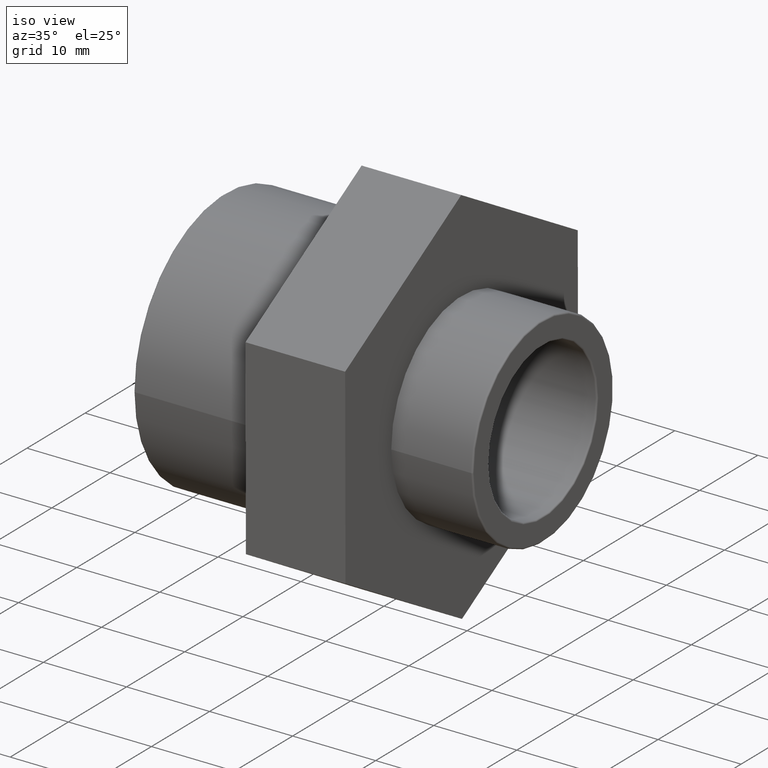
[diagram: clean part render]
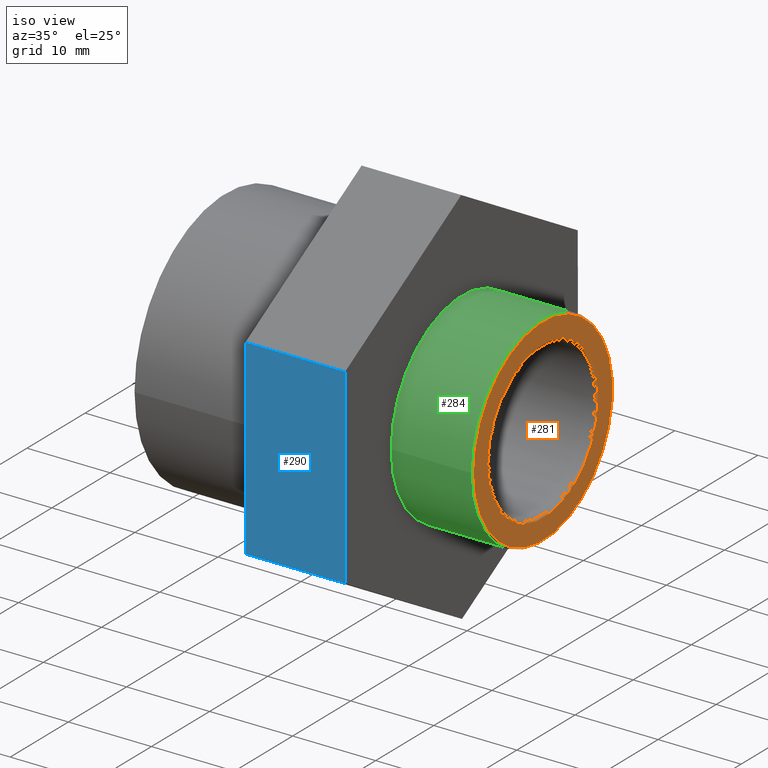
[diagram: same view with three faces highlighted in distinct colors, each labeled with its STEP entity id]
A machine part, iso view with three faces highlighted in distinct colors.
Their STEP definitions:

[orange] entity #281 — the highlighted planar face has unit normal (1, 0, 0).
#56=PLANE('',#306);
#69=FACE_BOUND('',#107,.T.);
#84=FACE_OUTER_BOUND('',#106,.T.);
#106=EDGE_LOOP('',(#214));
#107=EDGE_LOOP('',(#215));
#141=CIRCLE('',#305,9.50181);
#142=CIRCLE('',#307,11.92384);
#155=VERTEX_POINT('',#432);
#156=VERTEX_POINT('',#435);
#181=EDGE_CURVE('',#155,#155,#141,.T.);
#182=EDGE_CURVE('',#156,#156,#142,.T.);
#214=ORIENTED_EDGE('',*,*,#182,.F.);
#215=ORIENTED_EDGE('',*,*,#181,.F.);
#281=ADVANCED_FACE('',(#84,#69),#56,.T.);
#305=AXIS2_PLACEMENT_3D('',#433,#344,#345);
#306=AXIS2_PLACEMENT_3D('',#434,#346,#347);
#307=AXIS2_PLACEMENT_3D('',#436,#348,#349);
#344=DIRECTION('center_axis',(1.,1.83697019872103E-16,0.));
#345=DIRECTION('ref_axis',(-1.83697019872103E-16,1.,6.12323399573677E-17));
#346=DIRECTION('center_axis',(1.,1.83697019872103E-16,0.));
#347=DIRECTION('ref_axis',(0.,0.,-1.));
#348=DIRECTION('center_axis',(-1.,-1.83697019872103E-16,0.));
#349=DIRECTION('ref_axis',(-1.83697019872103E-16,1.,6.12323399573677E-17));
#432=CARTESIAN_POINT('',(19.15,-9.50181,-1.74545418039095E-15));
#433=CARTESIAN_POINT('Origin',(19.15,7.03559586110155E-15,0.));
#434=CARTESIAN_POINT('Origin',(19.15,-12.11015,0.));
#435=CARTESIAN_POINT('',(19.15,-11.92384,7.30124624477259E-16));
#436=CARTESIAN_POINT('Origin',(19.15,7.03559586110155E-15,0.));

[blue] entity #290 — the highlighted planar face has unit normal (0, -1, -0.0029).
#15=LINE('',#466,#33);
#16=LINE('',#468,#34);
#17=LINE('',#470,#35);
#18=LINE('',#471,#36);
#33=VECTOR('',#386,23.094010767585);
#34=VECTOR('',#387,12.);
#35=VECTOR('',#388,23.094010767585);
#36=VECTOR('',#389,12.);
#58=PLANE('',#325);
#93=FACE_OUTER_BOUND('',#124,.T.);
#124=EDGE_LOOP('',(#232,#233,#234,#235));
#166=VERTEX_POINT('',#464);
#167=VERTEX_POINT('',#465);
#168=VERTEX_POINT('',#467);
#169=VERTEX_POINT('',#469);
#192=EDGE_CURVE('',#166,#167,#15,.T.);
#193=EDGE_CURVE('',#168,#167,#16,.T.);
#194=EDGE_CURVE('',#168,#169,#17,.T.);
#195=EDGE_CURVE('',#169,#166,#18,.T.);
#232=ORIENTED_EDGE('',*,*,#192,.T.);
#233=ORIENTED_EDGE('',*,*,#193,.F.);
#234=ORIENTED_EDGE('',*,*,#194,.T.);
#235=ORIENTED_EDGE('',*,*,#195,.T.);
#290=ADVANCED_FACE('',(#93),#58,.T.);
#325=AXIS2_PLACEMENT_3D('',#463,#384,#385);
#384=DIRECTION('center_axis',(1.23357603426811E-16,-0.999995862287351,-0.00287670091889403));
#385=DIRECTION('ref_axis',(0.,-0.00287670091889396,0.999995862287351));
#386=DIRECTION('',(-5.28441385864174E-19,0.00287670091889403,-0.999995862287351));
#387=DIRECTION('',(-1.,-1.23358113847239E-16,0.));
#388=DIRECTION('',(5.28441385864174E-19,-0.00287670091889403,0.999995862287351));
#389=DIRECTION('',(-1.,-1.23358113847239E-16,0.));
#463=CARTESIAN_POINT('Origin',(9.35,-19.966699964749,-11.6044916239802));
#464=CARTESIAN_POINT('',(-2.65,-20.0331345267451,11.4894235872244));
#465=CARTESIAN_POINT('',(-2.65,-19.966699964749,-11.6044916239802));
#466=CARTESIAN_POINT('',(-2.65,-19.983308605248,-5.83101282117902));
#467=CARTESIAN_POINT('',(9.35,-19.966699964749,-11.6044916239802));
#468=CARTESIAN_POINT('',(9.35,-19.966699964749,-11.6044916239802));
#469=CARTESIAN_POINT('',(9.35,-20.0331345267451,11.4894235872244));
#470=CARTESIAN_POINT('',(9.35,-19.966699964749,-11.6044916239802));
#471=CARTESIAN_POINT('',(9.35,-20.0331345267451,11.4894235872244));

[green] entity #284 — the highlighted cylindrical surface (bore or boss wall) has radius 12.1102 mm, axis along (-1, -0, 0).
#52=CYLINDRICAL_SURFACE('',#312,12.11015);
#72=FACE_BOUND('',#113,.T.);
#87=FACE_OUTER_BOUND('',#112,.T.);
#112=EDGE_LOOP('',(#220));
#113=EDGE_LOOP('',(#221));
#144=CIRCLE('',#311,12.11015);
#145=CIRCLE('',#313,12.11015);
#158=VERTEX_POINT('',#441);
#159=VERTEX_POINT('',#444);
#184=EDGE_CURVE('',#158,#158,#144,.T.);
#185=EDGE_CURVE('',#159,#159,#145,.T.);
#220=ORIENTED_EDGE('',*,*,#185,.F.);
#221=ORIENTED_EDGE('',*,*,#184,.F.);
#284=ADVANCED_FACE('',(#87,#72),#52,.T.);
#311=AXIS2_PLACEMENT_3D('',#442,#356,#357);
#312=AXIS2_PLACEMENT_3D('',#443,#358,#359);
#313=AXIS2_PLACEMENT_3D('',#445,#360,#361);
#356=DIRECTION('center_axis',(1.,1.83697019872103E-16,0.));
#357=DIRECTION('ref_axis',(-1.83354132628441E-16,1.,6.12323399573677E-17));
#358=DIRECTION('center_axis',(-1.,-1.83697019872103E-16,0.));
#359=DIRECTION('ref_axis',(1.84139490753436E-16,-1.,0.));
#360=DIRECTION('center_axis',(-1.,-1.83697019872103E-16,0.));
#361=DIRECTION('ref_axis',(0.,0.,1.));
#441=CARTESIAN_POINT('',(18.96369,-12.11015,-2.22459846520415E-15));
#442=CARTESIAN_POINT('Origin',(18.96369,7.00137126932918E-15,0.));
#443=CARTESIAN_POINT('Origin',(14.25,6.13548046372824E-15,0.));
#444=CARTESIAN_POINT('',(9.35,-12.11015,0.));
#445=CARTESIAN_POINT('Origin',(9.35,5.23536506635494E-15,0.));